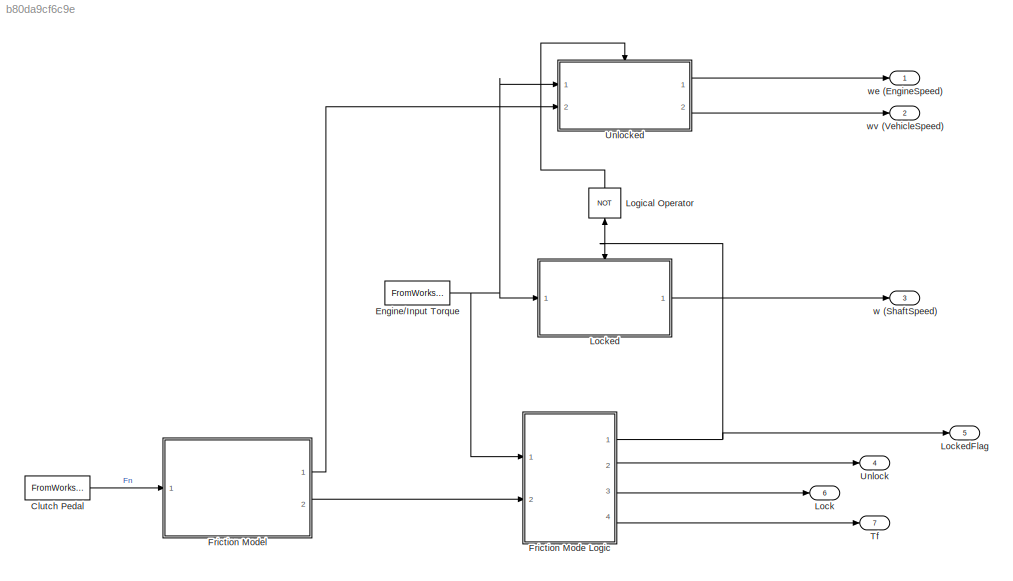
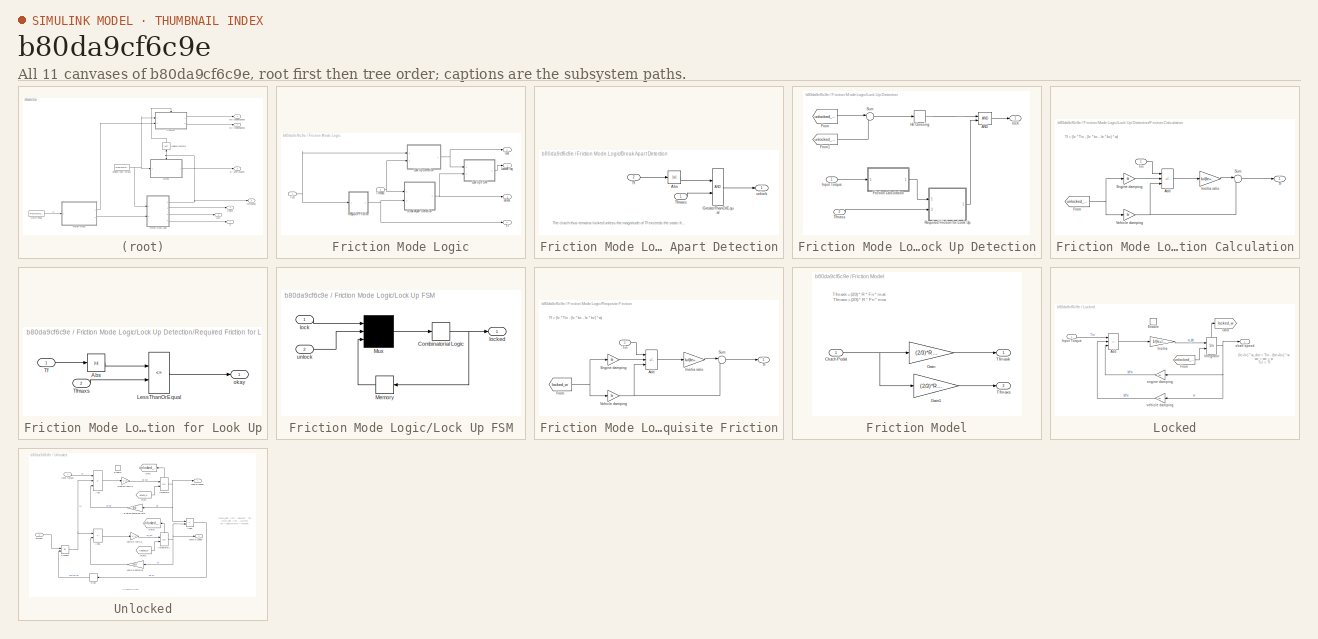
[diagram: thumbnail index - all 11 canvases of the model, root first then tree order]
MODEL slx_b80da9cf6c9e
KIND model
CONFIG AbsTol = 1e-7
CONFIG EnableMultiTasking = off
CONFIG FixedStep = auto
CONFIG MaxStep = auto
CONFIG MinStep = auto
CONFIG RelTol = 1e-6
CONFIG SampleTimeConstraint = Unconstrained
CONFIG SolverName = ode23
CONFIG StartTime = 0.0
CONFIG StopTime = 10.0
WORKSPACE source: mxarray member
WORKSPACE Fn = [0 1 2 3 4 5 6 7 8 9 10 0 ... (22 elements, 11x2)]
WORKSPACE Tin = [1 2 3 4 5 6 7 8 9 10 2 2 ... (20 elements, 10x2)]
BLOCK [FromWorkspace] Clutch Pedal
  VariableName = Fn
  ZeroCross = off
BLOCK [FromWorkspace] Engine//Input Torque
  VariableName = Tin
  ZeroCross = off
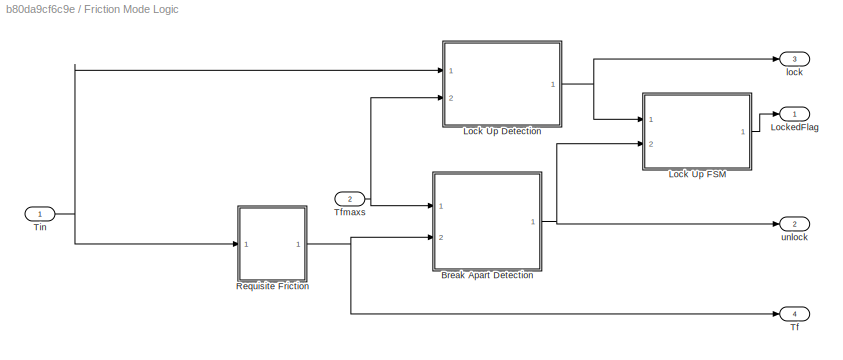
BLOCK [SubSystem] Friction Mode Logic
  Ports = [2, 4]
  RequestExecContextInheritance = off
BLOCK [SubSystem] Friction Mode Logic/Break Apart Detection
  Ports = [2, 1]
  RequestExecContextInheritance = off
BLOCK [Abs] Friction Mode Logic/Break Apart Detection/Abs
  SaturateOnIntegerOverflow = off
BLOCK [RelationalOperator] Friction Mode Logic/Break Apart Detection/GreaterThanOrEqual
  InputSameDT = off
  OutDataTypeStr = boolean
  Ports = [2, 1]
  RndMeth = Simplest
BLOCK [Inport] Friction Mode Logic/Break Apart Detection/Tf
  Port = 2
BLOCK [Inport] Friction Mode Logic/Break Apart Detection/Tfmaxs
BLOCK [Outport] Friction Mode Logic/Break Apart Detection/unlock
BLOCK [SubSystem] Friction Mode Logic/Lock Up Detection
  Ports = [2, 1]
  RequestExecContextInheritance = off
BLOCK [Logic] Friction Mode Logic/Lock Up Detection/AND
  AllPortsSameDT = off
  IconShape = distinctive
  OutDataTypeStr = boolean
  Ports = [2, 1]
BLOCK [SubSystem] Friction Mode Logic/Lock Up Detection/Friction Calculation
  Ports = [1, 1]
  RequestExecContextInheritance = off
BLOCK [Sum] Friction Mode Logic/Lock Up Detection/Friction Calculation/Add
  IconShape = rectangular
  Inputs = +--
  OutDataTypeStr = Inherit: Same as first input
  Ports = [3, 1]
  SaturateOnIntegerOverflow = on
BLOCK [Gain] Friction Mode Logic/Lock Up Detection/Friction Calculation/Engine damping
  Gain = be
BLOCK [From] Friction Mode Logic/Lock Up Detection/Friction Calculation/From
  GotoTag = unlocked_we
  TagVisibility = global
BLOCK [Gain] Friction Mode Logic/Lock Up Detection/Friction Calculation/Inertia ratio
  Gain = Iv/(Ie+Iv)
BLOCK [Sum] Friction Mode Logic/Lock Up Detection/Friction Calculation/Sum
  Inputs = |++
  OutDataTypeStr = Inherit: Same as first input
  Ports = [2, 1]
  SaturateOnIntegerOverflow = on
BLOCK [Outport] Friction Mode Logic/Lock Up Detection/Friction Calculation/Tf
BLOCK [Inport] Friction Mode Logic/Lock Up Detection/Friction Calculation/Tin
BLOCK [Gain] Friction Mode Logic/Lock Up Detection/Friction Calculation/Vehicle damping
  Gain = bv
BLOCK [From] Friction Mode Logic/Lock Up Detection/From
  GotoTag = unlocked_we
  TagVisibility = global
BLOCK [From] Friction Mode Logic/Lock Up Detection/From1
  GotoTag = unlocked_wv
  TagVisibility = global
BLOCK [HitCross] Friction Mode Logic/Lock Up Detection/Hit Crossing
  Ports = [1, 1]
BLOCK [Inport] Friction Mode Logic/Lock Up Detection/Input Torque
BLOCK [SubSystem] Friction Mode Logic/Lock Up Detection/Required Friction for Look Up
  Ports = [2, 1]
  RequestExecContextInheritance = off
BLOCK [Abs] Friction Mode Logic/Lock Up Detection/Required Friction for Look Up/Abs
  SaturateOnIntegerOverflow = off
BLOCK [RelationalOperator] Friction Mode Logic/Lock Up Detection/Required Friction for Look Up/LessThanOrEqual
  Operator = <=
  OutDataTypeStr = boolean
  Ports = [2, 1]
BLOCK [Inport] Friction Mode Logic/Lock Up Detection/Required Friction for Look Up/Tf
BLOCK [Inport] Friction Mode Logic/Lock Up Detection/Required Friction for Look Up/Tfmaxs
  Port = 2
BLOCK [Outport] Friction Mode Logic/Lock Up Detection/Required Friction for Look Up/okay
BLOCK [Sum] Friction Mode Logic/Lock Up Detection/Sum
  Inputs = |+-
  OutDataTypeStr = Inherit: Same as first input
  Ports = [2, 1]
  SaturateOnIntegerOverflow = on
BLOCK [Inport] Friction Mode Logic/Lock Up Detection/Tfmaxs
  Port = 2
BLOCK [Outport] Friction Mode Logic/Lock Up Detection/lock
BLOCK [SubSystem] Friction Mode Logic/Lock Up FSM
  Ports = [2, 1]
  RequestExecContextInheritance = off
BLOCK [CombinatorialLogic] Friction Mode Logic/Lock Up FSM/Combinatorial Logic
  TruthTable = [0;1;0;0;1;1;1;0]
BLOCK [Memory] Friction Mode Logic/Lock Up FSM/Memory
  NameLocation = top
BLOCK [Mux] Friction Mode Logic/Lock Up FSM/Mux
  DisplayOption = signals
  Inputs = 3
  Ports = [3, 1]
BLOCK [Inport] Friction Mode Logic/Lock Up FSM/lock
BLOCK [Outport] Friction Mode Logic/Lock Up FSM/locked
BLOCK [Inport] Friction Mode Logic/Lock Up FSM/unlock
  Port = 2
BLOCK [Outport] Friction Mode Logic/LockedFlag
BLOCK [SubSystem] Friction Mode Logic/Requisite Friction
  Ports = [1, 1]
  RequestExecContextInheritance = off
BLOCK [Sum] Friction Mode Logic/Requisite Friction/Add
  IconShape = rectangular
  Inputs = +--
  Ports = [3, 1]
BLOCK [Gain] Friction Mode Logic/Requisite Friction/Engine damping
  Gain = be
BLOCK [From] Friction Mode Logic/Requisite Friction/From
  GotoTag = locked_w
  TagVisibility = global
BLOCK [Gain] Friction Mode Logic/Requisite Friction/Inertia ratio
  Gain = Iv/(Ie+Iv)
BLOCK [Sum] Friction Mode Logic/Requisite Friction/Sum
  Inputs = |++
  Ports = [2, 1]
BLOCK [Outport] Friction Mode Logic/Requisite Friction/Tf
BLOCK [Inport] Friction Mode Logic/Requisite Friction/Tin
BLOCK [Gain] Friction Mode Logic/Requisite Friction/Vehicle damping
  Gain = bv
BLOCK [Outport] Friction Mode Logic/Tf
  Port = 4
BLOCK [Inport] Friction Mode Logic/Tfmaxs
  Port = 2
BLOCK [Inport] Friction Mode Logic/Tin
BLOCK [Outport] Friction Mode Logic/lock
  Port = 3
BLOCK [Outport] Friction Mode Logic/unlock
  Port = 2
BLOCK [SubSystem] Friction Model
  Ports = [1, 2]
  RequestExecContextInheritance = off
BLOCK [Inport] Friction Model/Clutch Pedal
BLOCK [Gain] Friction Model/Gain
  Gain = (2/3)*R*muk
BLOCK [Gain] Friction Model/Gain1
  Gain = (2/3)*R*mus
BLOCK [Outport] Friction Model/Tfmaxk
BLOCK [Outport] Friction Model/Tfmaxs
  Port = 2
BLOCK [Outport] Lock
  Port = 6
BLOCK [SubSystem] Locked
  Ports = [1, 1, 1]
  RequestExecContextInheritance = off
BLOCK [Sum] Locked/Add
  IconShape = rectangular
  Inputs = +--
  Ports = [3, 1]
BLOCK [EnablePort] Locked/Enable
  Ports = []
  StatesWhenEnabling = reset
BLOCK [From] Locked/From
  GotoTag = unlocked_we
  TagVisibility = global
BLOCK [Goto] Locked/Goto
  GotoTag = locked_w
  TagVisibility = global
BLOCK [Gain] Locked/Inertia
  Gain = 1/(Ie+Iv)
BLOCK [Inport] Locked/Input Torque
BLOCK [Integrator] Locked/Integrator
  InitialConditionSource = external
  Ports = [2, 1, 0, 0, 1]
  ShowStatePort = on
BLOCK [Gain] Locked/engine damping
  Gain = be
BLOCK [Outport] Locked/shaft speed
BLOCK [Gain] Locked/vehicle damping
  Gain = bv
BLOCK [Outport] LockedFlag
  Port = 5
BLOCK [Logic] Logical Operator
  AllPortsSameDT = off
  IconShape = distinctive
  NameLocation = right
  Operator = NOT
  OutDataTypeStr = boolean
  Ports = [1, 1]
BLOCK [Outport] Tf
  Port = 7
BLOCK [Outport] Unlock
  Port = 4
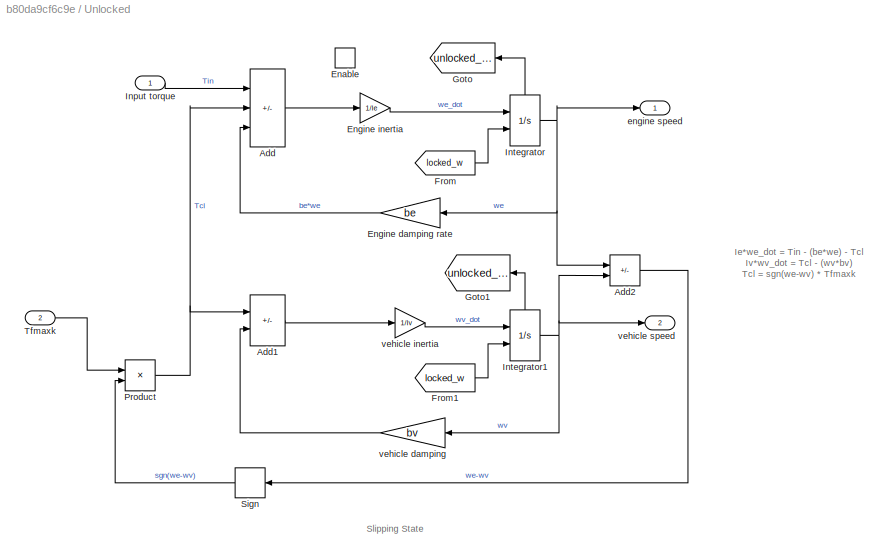
BLOCK [SubSystem] Unlocked
  Ports = [2, 2, 1]
  RequestExecContextInheritance = off
BLOCK [Sum] Unlocked/Add
  IconShape = rectangular
  Inputs = +--
  OutDataTypeStr = Inherit: Same as first input
  Ports = [3, 1]
  SaturateOnIntegerOverflow = on
BLOCK [Sum] Unlocked/Add1
  IconShape = rectangular
  Inputs = +-
  OutDataTypeStr = Inherit: Same as first input
  Ports = [2, 1]
  SaturateOnIntegerOverflow = on
BLOCK [Sum] Unlocked/Add2
  IconShape = rectangular
  Inputs = +-
  OutDataTypeStr = Inherit: Same as first input
  Ports = [2, 1]
  SaturateOnIntegerOverflow = on
BLOCK [EnablePort] Unlocked/Enable
  Ports = []
  StatesWhenEnabling = reset
BLOCK [Gain] Unlocked/Engine damping rate
  Gain = be
BLOCK [Gain] Unlocked/Engine inertia
  Gain = 1/Ie
BLOCK [From] Unlocked/From
  GotoTag = locked_w
  TagVisibility = global
BLOCK [From] Unlocked/From1
  GotoTag = locked_w
  TagVisibility = global
BLOCK [Goto] Unlocked/Goto
  GotoTag = unlocked_we
  NameLocation = top
  TagVisibility = global
BLOCK [Goto] Unlocked/Goto1
  GotoTag = unlocked_wv
  NameLocation = top
  TagVisibility = global
BLOCK [Inport] Unlocked/Input torque
BLOCK [Integrator] Unlocked/Integrator
  InitialConditionSource = external
  Ports = [2, 1, 0, 0, 1]
  ShowStatePort = on
BLOCK [Integrator] Unlocked/Integrator1
  InitialConditionSource = external
  Ports = [2, 1, 0, 0, 1]
  ShowStatePort = on
BLOCK [Product] Unlocked/Product
  OutDataTypeStr = Inherit: Same as first input
  Ports = [2, 1]
  SaturateOnIntegerOverflow = on
BLOCK [Signum] Unlocked/Sign
  NameLocation = top
BLOCK [Inport] Unlocked/Tfmaxk
  Port = 2
BLOCK [Outport] Unlocked/engine speed
BLOCK [Gain] Unlocked/vehicle damping
  Gain = bv
BLOCK [Gain] Unlocked/vehicle inertia
  Gain = 1/Iv
BLOCK [Outport] Unlocked/vehicle speed
  Port = 2
BLOCK [Outport] w (ShaftSpeed)
  Port = 3
BLOCK [Outport] we (EngineSpeed)
BLOCK [Outport] wv (VehicleSpeed)
  Port = 2
ANNOTATION Friction Mode Logic/Break Apart Detection: The clutch thus remains locked unless the magnitude of Tf exceeds the static friction capacity, Tfmaxs .
ANNOTATION Friction Mode Logic/Lock Up Detection/Friction Calculation: Tf = (Iv * Tin - (Iv * bc - Ie * bv) * w)
ANNOTATION Friction Mode Logic/Requisite Friction: Tf = (Iv * Tin - (Iv * bc - Ie * bv) * w)
ANNOTATION Friction Model: Tfmaxk = (2/3) * R * Fn * muk Tfmaxs = (2/3) * R * Fn * mus
ANNOTATION Locked: (Ie+Iv) * w_dot = Tin - (be+bv) * w wv = we = w Tcl = Tf
ANNOTATION Unlocked: Ie*we_dot = Tin - (be*we) - Tcl Iv*wv_dot = Tcl - (wv*bv) Tcl = sgn(we-wv) * Tfmaxk
ANNOTATION Unlocked: Slipping State
LINE Clutch Pedal:1 -> Friction Model:1
NET Engine//Input Torque:1 -> Friction Mode Logic:1, Locked:1, Unlocked:1
LINE Friction Mode Logic/Break Apart Detection/Abs:1 -> Friction Mode Logic/Break Apart Detection/GreaterThanOrEqual:1
LINE Friction Mode Logic/Break Apart Detection/GreaterThanOrEqual:1 -> Friction Mode Logic/Break Apart Detection/unlock:1
LINE Friction Mode Logic/Break Apart Detection/Tf:1 -> Friction Mode Logic/Break Apart Detection/Abs:1
LINE Friction Mode Logic/Break Apart Detection/Tfmaxs:1 -> Friction Mode Logic/Break Apart Detection/GreaterThanOrEqual:2
NET Friction Mode Logic/Break Apart Detection:1 -> Friction Mode Logic/Lock Up FSM:2, Friction Mode Logic/unlock:1
LINE Friction Mode Logic/Lock Up Detection/AND:1 -> Friction Mode Logic/Lock Up Detection/lock:1
LINE Friction Mode Logic/Lock Up Detection/Friction Calculation/Add:1 -> Friction Mode Logic/Lock Up Detection/Friction Calculation/Inertia ratio:1
LINE Friction Mode Logic/Lock Up Detection/Friction Calculation/Engine damping:1 -> Friction Mode Logic/Lock Up Detection/Friction Calculation/Add:2
NET Friction Mode Logic/Lock Up Detection/Friction Calculation/From:1 -> Friction Mode Logic/Lock Up Detection/Friction Calculation/Engine damping:1, Friction Mode Logic/Lock Up Detection/Friction Calculation/Vehicle damping:1
LINE Friction Mode Logic/Lock Up Detection/Friction Calculation/Inertia ratio:1 -> Friction Mode Logic/Lock Up Detection/Friction Calculation/Sum:1
LINE Friction Mode Logic/Lock Up Detection/Friction Calculation/Sum:1 -> Friction Mode Logic/Lock Up Detection/Friction Calculation/Tf:1
LINE Friction Mode Logic/Lock Up Detection/Friction Calculation/Tin:1 -> Friction Mode Logic/Lock Up Detection/Friction Calculation/Add:1
NET Friction Mode Logic/Lock Up Detection/Friction Calculation/Vehicle damping:1 -> Friction Mode Logic/Lock Up Detection/Friction Calculation/Add:3, Friction Mode Logic/Lock Up Detection/Friction Calculation/Sum:2
LINE Friction Mode Logic/Lock Up Detection/Friction Calculation:1 -> Friction Mode Logic/Lock Up Detection/Required Friction for Look Up:1
LINE Friction Mode Logic/Lock Up Detection/From1:1 -> Friction Mode Logic/Lock Up Detection/Sum:2
LINE Friction Mode Logic/Lock Up Detection/From:1 -> Friction Mode Logic/Lock Up Detection/Sum:1
LINE Friction Mode Logic/Lock Up Detection/Hit Crossing:1 -> Friction Mode Logic/Lock Up Detection/AND:1
LINE Friction Mode Logic/Lock Up Detection/Input Torque:1 -> Friction Mode Logic/Lock Up Detection/Friction Calculation:1
LINE Friction Mode Logic/Lock Up Detection/Required Friction for Look Up/Abs:1 -> Friction Mode Logic/Lock Up Detection/Required Friction for Look Up/LessThanOrEqual:1
LINE Friction Mode Logic/Lock Up Detection/Required Friction for Look Up/LessThanOrEqual:1 -> Friction Mode Logic/Lock Up Detection/Required Friction for Look Up/okay:1
LINE Friction Mode Logic/Lock Up Detection/Required Friction for Look Up/Tf:1 -> Friction Mode Logic/Lock Up Detection/Required Friction for Look Up/Abs:1
LINE Friction Mode Logic/Lock Up Detection/Required Friction for Look Up/Tfmaxs:1 -> Friction Mode Logic/Lock Up Detection/Required Friction for Look Up/LessThanOrEqual:2
LINE Friction Mode Logic/Lock Up Detection/Required Friction for Look Up:1 -> Friction Mode Logic/Lock Up Detection/AND:2
LINE Friction Mode Logic/Lock Up Detection/Sum:1 -> Friction Mode Logic/Lock Up Detection/Hit Crossing:1
LINE Friction Mode Logic/Lock Up Detection/Tfmaxs:1 -> Friction Mode Logic/Lock Up Detection/Required Friction for Look Up:2
NET Friction Mode Logic/Lock Up Detection:1 -> Friction Mode Logic/Lock Up FSM:1, Friction Mode Logic/lock:1
NET Friction Mode Logic/Lock Up FSM/Combinatorial Logic:1 -> Friction Mode Logic/Lock Up FSM/Memory:1, Friction Mode Logic/Lock Up FSM/locked:1
LINE Friction Mode Logic/Lock Up FSM/Memory:1 -> Friction Mode Logic/Lock Up FSM/Mux:3
LINE Friction Mode Logic/Lock Up FSM/Mux:1 -> Friction Mode Logic/Lock Up FSM/Combinatorial Logic:1
LINE Friction Mode Logic/Lock Up FSM/lock:1 -> Friction Mode Logic/Lock Up FSM/Mux:1
LINE Friction Mode Logic/Lock Up FSM/unlock:1 -> Friction Mode Logic/Lock Up FSM/Mux:2
LINE Friction Mode Logic/Lock Up FSM:1 -> Friction Mode Logic/LockedFlag:1
LINE Friction Mode Logic/Requisite Friction/Add:1 -> Friction Mode Logic/Requisite Friction/Inertia ratio:1
LINE Friction Mode Logic/Requisite Friction/Engine damping:1 -> Friction Mode Logic/Requisite Friction/Add:2
NET Friction Mode Logic/Requisite Friction/From:1 -> Friction Mode Logic/Requisite Friction/Engine damping:1, Friction Mode Logic/Requisite Friction/Vehicle damping:1
LINE Friction Mode Logic/Requisite Friction/Inertia ratio:1 -> Friction Mode Logic/Requisite Friction/Sum:1
LINE Friction Mode Logic/Requisite Friction/Sum:1 -> Friction Mode Logic/Requisite Friction/Tf:1
LINE Friction Mode Logic/Requisite Friction/Tin:1 -> Friction Mode Logic/Requisite Friction/Add:1
NET Friction Mode Logic/Requisite Friction/Vehicle damping:1 -> Friction Mode Logic/Requisite Friction/Add:3, Friction Mode Logic/Requisite Friction/Sum:2
NET Friction Mode Logic/Requisite Friction:1 -> Friction Mode Logic/Break Apart Detection:2, Friction Mode Logic/Tf:1
NET Friction Mode Logic/Tfmaxs:1 -> Friction Mode Logic/Break Apart Detection:1, Friction Mode Logic/Lock Up Detection:2
NET Friction Mode Logic/Tin:1 -> Friction Mode Logic/Lock Up Detection:1, Friction Mode Logic/Requisite Friction:1
NET Friction Mode Logic:1 -> Locked:enable, LockedFlag:1, Logical Operator:1
LINE Friction Mode Logic:2 -> Unlock:1
LINE Friction Mode Logic:3 -> Lock:1
LINE Friction Mode Logic:4 -> Tf:1
NET Friction Model/Clutch Pedal:1 -> Friction Model/Gain1:1, Friction Model/Gain:1
LINE Friction Model/Gain1:1 -> Friction Model/Tfmaxs:1
LINE Friction Model/Gain:1 -> Friction Model/Tfmaxk:1
LINE Friction Model:1 -> Unlocked:2
LINE Friction Model:2 -> Friction Mode Logic:2
LINE Locked/Add:1 -> Locked/Inertia:1
LINE Locked/From:1 -> Locked/Integrator:2
LINE Locked/Inertia:1 -> Locked/Integrator:1
LINE Locked/Input Torque:1 -> Locked/Add:1
NET Locked/Integrator:1 -> Locked/engine damping:1, Locked/shaft speed:1, Locked/vehicle damping:1
LINE Locked/Integrator:state -> Locked/Goto:1
LINE Locked/engine damping:1 -> Locked/Add:3
LINE Locked/vehicle damping:1 -> Locked/Add:2
LINE Locked:1 -> w (ShaftSpeed):1
LINE Logical Operator:1 -> Unlocked:enable
LINE Unlocked/Add1:1 -> Unlocked/vehicle inertia:1
LINE Unlocked/Add2:1 -> Unlocked/Sign:1
LINE Unlocked/Add:1 -> Unlocked/Engine inertia:1
LINE Unlocked/Engine damping rate:1 -> Unlocked/Add:3
LINE Unlocked/Engine inertia:1 -> Unlocked/Integrator:1
LINE Unlocked/From1:1 -> Unlocked/Integrator1:2
LINE Unlocked/From:1 -> Unlocked/Integrator:2
LINE Unlocked/Input torque:1 -> Unlocked/Add:1
NET Unlocked/Integrator1:1 -> Unlocked/Add2:2, Unlocked/vehicle damping:1, Unlocked/vehicle speed:1
LINE Unlocked/Integrator1:state -> Unlocked/Goto1:1
NET Unlocked/Integrator:1 -> Unlocked/Add2:1, Unlocked/Engine damping rate:1, Unlocked/engine speed:1
LINE Unlocked/Integrator:state -> Unlocked/Goto:1
NET Unlocked/Product:1 -> Unlocked/Add1:1, Unlocked/Add:2
LINE Unlocked/Sign:1 -> Unlocked/Product:2
LINE Unlocked/Tfmaxk:1 -> Unlocked/Product:1
LINE Unlocked/vehicle damping:1 -> Unlocked/Add1:2
LINE Unlocked/vehicle inertia:1 -> Unlocked/Integrator1:1
LINE Unlocked:1 -> we (EngineSpeed):1
LINE Unlocked:2 -> wv (VehicleSpeed):1
note: NET lines group one-source signal fan-out (src -> all destinations, sorted); 1:1 wires keep LINE
